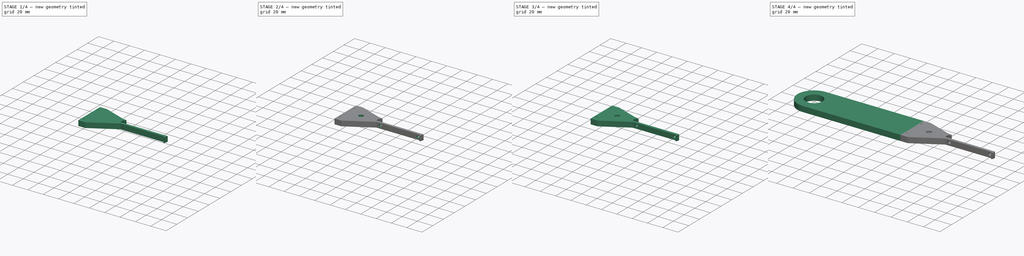
[diagram: build sequence overview — one tinted view per stage of 4, left to right]
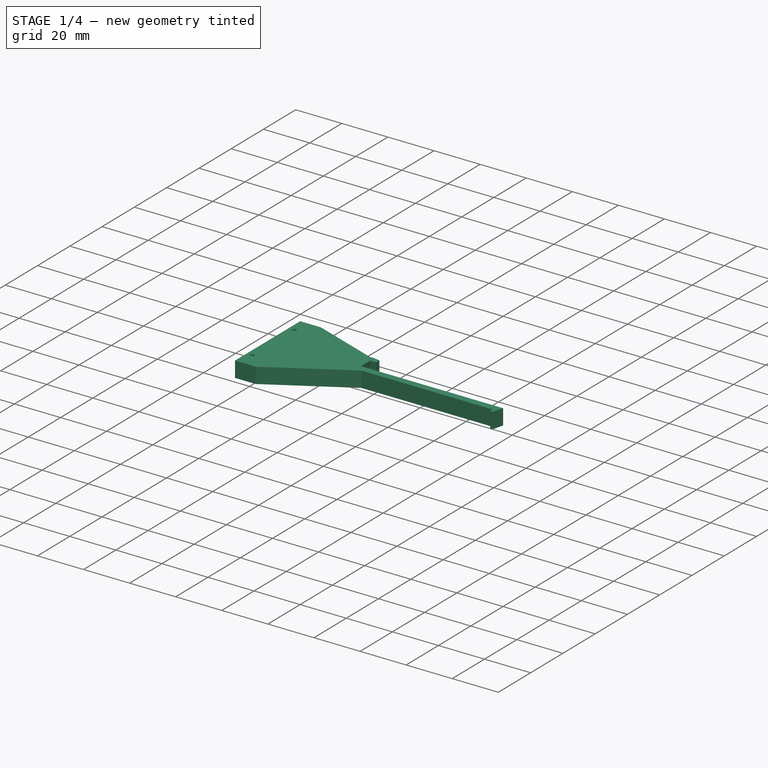
[diagram: stage 1 of 4 — iso view after this stage's code; geometry added in this stage tinted green]
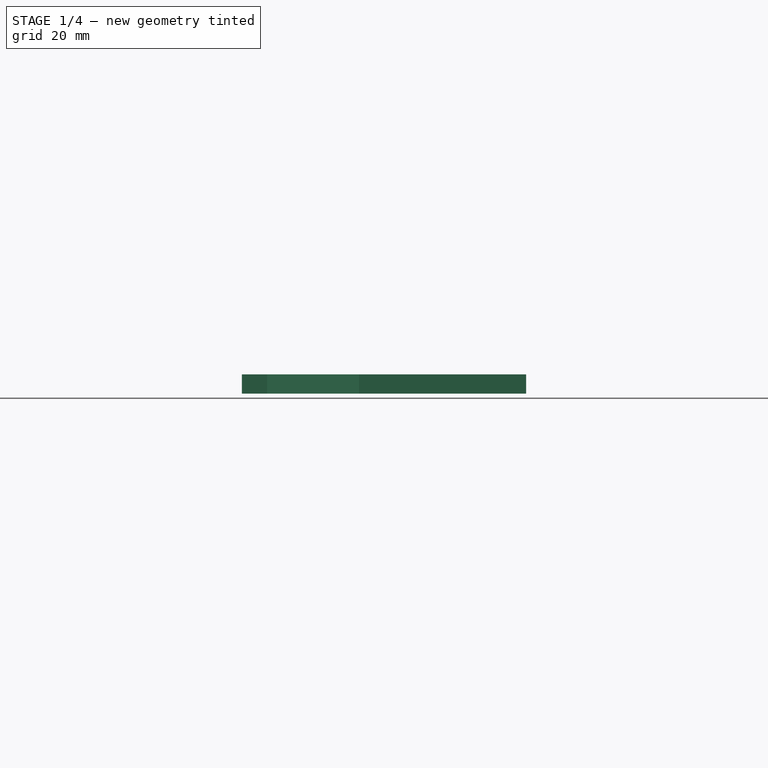
[diagram: stage 1 of 4 — front view after this stage's code; geometry added in this stage tinted green]
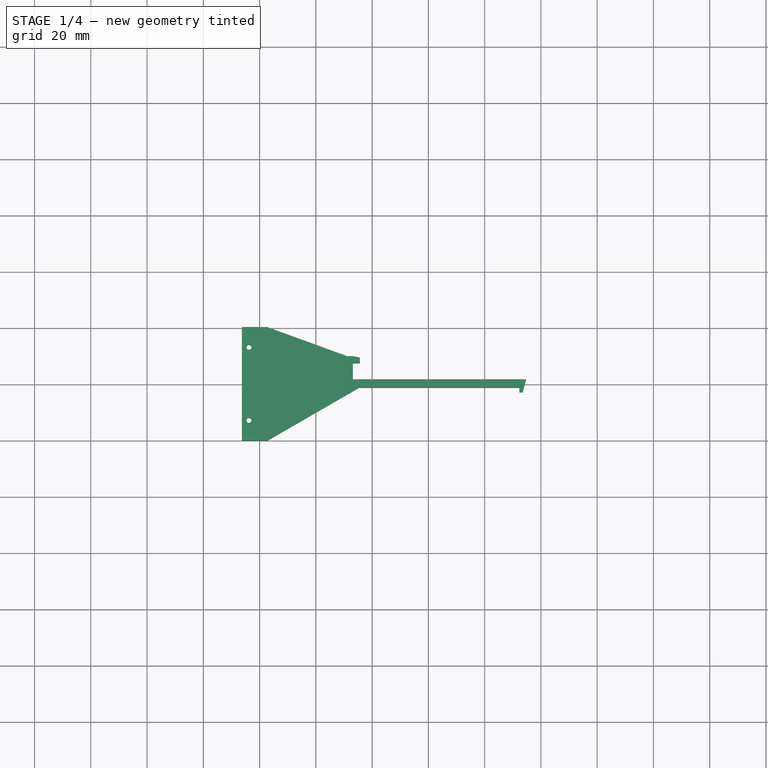
[diagram: stage 1 of 4 — top view after this stage's code; geometry added in this stage tinted green]
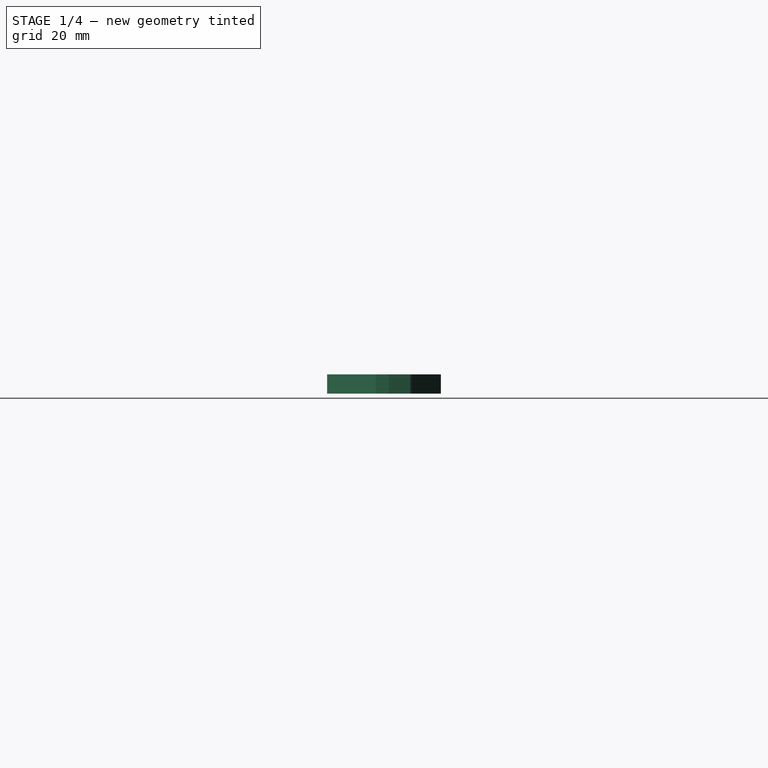
[diagram: stage 1 of 4 — right view after this stage's code; geometry added in this stage tinted green]
FCSTD DOCUMENT  (FreeCAD 0.18R16155 (Git))
Label: pro_w_spool_holder
License: All rights reserved
LicenseURL: http://en.wikipedia.org/wiki/All_rights_reserved
objects: Sketcher::SketchObject×9, PartDesign::Pad×4, PartDesign::Hole×4, PartDesign::Fillet×3, PartDesign::Body×2, App::Part×2, App::FeaturePython×2, PartDesign::Pocket×1
note: 32 computed .brp shape members not serialized (recipe doc carries the construction recipe); baked Part::Feature solids carry a one-line shape summary decoded from their .brp

FEATURE [Sketcher::SketchObject] Sketch002
  MapMode = 5
  Support = -> [XY_Plane003]
  sketch-geometry (21):
    g0: LineSegment [constr] StartX=71.1384 StartY=21.8472 StartZ=0 EndX=71.1384 EndY=30.0472 EndZ=0
    g1: LineSegment StartX=71.1384 StartY=30.0472 StartZ=0 EndX=73.1384 EndY=30.0472 EndZ=0
    g2: LineSegment StartX=73.1384 StartY=30.0472 StartZ=0 EndX=75.6384 EndY=29.5472 EndZ=0
    g3: LineSegment StartX=75.6384 StartY=29.5472 StartZ=0 EndX=75.6384 EndY=27.5472 EndZ=0
    g4: LineSegment StartX=75.6384 StartY=27.5472 StartZ=0 EndX=73.1384 EndY=27.5472 EndZ=0
    g5: LineSegment StartX=73.1384 StartY=27.5472 StartZ=0 EndX=73.1384 EndY=21.8472 EndZ=0
    g6: LineSegment StartX=132.338 StartY=21.8472 StartZ=0 EndX=134.738 EndY=21.8472 EndZ=0
    g7: LineSegment StartX=134.738 StartY=21.8472 StartZ=0 EndX=133.538 EndY=17.2472 EndZ=0
    g8: LineSegment StartX=133.538 StartY=17.2472 StartZ=0 EndX=132.338 EndY=17.2472 EndZ=0
    g9: LineSegment StartX=132.338 StartY=17.2472 StartZ=0 EndX=132.338 EndY=18.8472 EndZ=0
    g10: LineSegment StartX=132.338 StartY=18.8472 StartZ=0 EndX=75.3384 EndY=18.8472 EndZ=0
    g11: LineSegment StartX=33.6942 StartY=40.4 StartZ=0 EndX=33.6942 EndY=0 EndZ=0
    g12: LineSegment [constr] StartX=132.338 StartY=21.8472 StartZ=0 EndX=132.338 EndY=18.8472 EndZ=0
    g13: LineSegment [constr] StartX=73.1384 StartY=30.0472 StartZ=0 EndX=73.1384 EndY=27.5472 EndZ=0
    g14: LineSegment [constr] StartX=71.1384 StartY=21.8472 StartZ=0 EndX=73.1384 EndY=21.8472 EndZ=0
    g15: LineSegment StartX=33.6942 StartY=40.4 StartZ=0 EndX=42.6942 EndY=40.4 EndZ=0
    g16: LineSegment StartX=33.6942 StartY=0 StartZ=0 EndX=42.6942 EndY=0 EndZ=0
    g17: LineSegment StartX=42.6942 StartY=0 StartZ=0 EndX=75.3384 EndY=18.8472 EndZ=0
    g18: LineSegment StartX=42.6942 StartY=40.4 StartZ=0 EndX=71.1384 EndY=30.0472 EndZ=0
    g19: LineSegment StartX=75.3384 StartY=21.8472 StartZ=0 EndX=132.338 EndY=21.8472 EndZ=0
    g20: LineSegment StartX=73.1384 StartY=21.8472 StartZ=0 EndX=75.3384 EndY=21.8472 EndZ=0
  constraints (59):
    c: Coincident(g5,g4)
    c: Coincident(g4,g3)
    c: Coincident(g3,g2)
    c: Coincident(g2,g1)
    c: Coincident(g1,g0)
    c: Coincident(g10,g9)
    c: Coincident(g6,g7)
    c: Coincident(g8,g9)
    c: Coincident(g8,g7)
    c: Horizontal(g10)
    c: Parallel(g4,g1)
    c: Parallel(g5,g0)
    c: Perpendicular(g10,g9)
    c: Parallel(g3,g5)
    c: Distance(g3) = 2
    c: Coincident(g13,g1)
    c: Coincident(g13,g4)
    c: Coincident(g14,g5)
    c: Coincident(g14,g0)
    c: Coincident(g12,g9)
    c: Distance(g12) = 3
    c: Parallel(g12,g9)
    c: Distance(g10) = 57
    c: Distance(g9) = 1.6
    c: Parallel(g8,g6)
    c: Parallel(g5,g13)
    c: Distance(g13) = 2.5
    c: Distance(g4) = 2.5
    c: Distance(g14) = 2
    c: Parallel(g11,g12)
    c: Distance(g11) = 40.4
    c: Distance(g8) = 1.2
    c: Distance(g6) = 2.4
    c: Coincident(g18,g1)
    c: Coincident(g18,g15)
    c: Coincident(g15,g11)
    c: Coincident(g11,g16)
    c: Coincident(g16,g17)
    c: Coincident(g17,g10)
    c: Parallel(g10,g15)
    c: Parallel(g16,g15)
    c: Equal(g15,g16)
    c: Distance(g15) = 9
    c: Angle(g17,g10) = 2.61799
    c: Distance(g5) = 5.7
    c: Angle(g1,g18) = 2.79253
    c: PointOnObject(g11,g-1)
    c: Coincident(g19,g20)
    c: Coincident(g20,g5)
    c: Coincident(g19,g6)
    c: Equal(g10,g19)
    c: Parallel(g19,g10)
    c: Parallel(g20,g19)
    c: Coincident(g12,g6)
    c: Parallel(g19,g6)
    c: Distance(g20) = 2.2
    c: Perpendicular(g5,g20)
    c: Parallel(g20,g14)
    c: Parallel(g4,g19)
FEATURE [PartDesign::Pad] Pad002
  Length = 6.8
  Length2 = 100
  Profile = -> Sketch002
  Type = 0
FEATURE [PartDesign::Body] Body
  Group = -> [Sketch,Pad,Sketch001,Pad001,Sketch004,Hole]
  Origin = -> Origin001
  Tip = -> Hole
FEATURE [App::Part] Part
  Group = -> [Body]
  Origin = -> Origin
FEATURE [Sketcher::SketchObject] Sketch005
  ExternalGeometry = -> [Pad002]
  MapMode = 5
  Placement = pos=(33.6942,-5.93e-14,0) rot=(-0.57735,0.57735,0.57735;4.18879rad)
  Support = -> [Pad002]
  sketch-geometry (7):
    g0: LineSegment StartX=-35.8 StartY=1.8 StartZ=0 EndX=-4.6 EndY=1.8 EndZ=0
    g1: LineSegment StartX=-4.6 StartY=1.8 StartZ=0 EndX=-4.6 EndY=5 EndZ=0
    g2: LineSegment StartX=-4.6 StartY=5 StartZ=0 EndX=-35.8 EndY=5 EndZ=0
    g3: LineSegment StartX=-35.8 StartY=5 StartZ=0 EndX=-35.8 EndY=1.8 EndZ=0
    g4: LineSegment [constr] StartX=-40.4 StartY=6.8 StartZ=0 EndX=-35.8 EndY=5 EndZ=0
    g5: LineSegment [constr] StartX=-40.4 StartY=0 StartZ=0 EndX=-35.8 EndY=1.8 EndZ=0
    g6: LineSegment [constr] StartX=-4.6 StartY=5 StartZ=0 EndX=-5.95e-14 EndY=6.8 EndZ=0
  constraints (18):
    c: Coincident(g0,g1)
    c: Coincident(g1,g2)
    c: Coincident(g2,g3)
    c: Coincident(g3,g0)
    c: Horizontal(g0)
    c: Horizontal(g2)
    c: Vertical(g1)
    c: Vertical(g3)
    c: Coincident(g4,g2)
    c: Coincident(g5,g0)
    c: Coincident(g6,g1)
    c: Coincident(g6,g-4)
    c: Coincident(g4,g-3)
    c: Coincident(g5,g-3)
    c: Equal(g6,g4)
    c: Equal(g4,g5)
    c: Distance(g2) = 31.2
    c: Distance(g1) = 3.2
FEATURE [PartDesign::Pocket] Pocket
  BaseFeature = -> Pad002
  Length = 5.5
  Length2 = 100
  Profile = -> Sketch005
  Type = 0
FEATURE [Sketcher::SketchObject] Sketch006
  ExternalGeometry = -> [Pocket]
  MapMode = 5
  Placement = pos=(0,0,6.8) rot=(0,0,1;0rad)
  Support = -> [Pocket]
  sketch-geometry (11):
    g0: LineSegment [constr] StartX=33.6942 StartY=40.4 StartZ=0 EndX=33.6942 EndY=35.7 EndZ=0
    g1: LineSegment [constr] StartX=33.6942 StartY=35.7 StartZ=0 EndX=33.6942 EndY=4.7 EndZ=0
    g2: LineSegment [constr] StartX=36.1942 StartY=7.2 StartZ=0 EndX=38.6942 EndY=4.7 EndZ=0
    g3: LineSegment [constr] StartX=33.6942 StartY=0 StartZ=0 EndX=33.6942 EndY=4.7 EndZ=0
    g4: LineSegment [constr] StartX=33.6942 StartY=35.7 StartZ=0 EndX=36.1942 EndY=33.2 EndZ=0
    g5: LineSegment [constr] StartX=33.6942 StartY=35.7 StartZ=0 EndX=38.6942 EndY=35.7 EndZ=0
    g6: LineSegment [constr] StartX=38.6942 StartY=35.7 StartZ=0 EndX=36.1942 EndY=33.2 EndZ=0
    g7: LineSegment [constr] StartX=38.6942 StartY=4.7 StartZ=0 EndX=33.6942 EndY=4.7 EndZ=0
    g8: LineSegment [constr] StartX=36.1942 StartY=7.2 StartZ=0 EndX=33.6942 EndY=4.7 EndZ=0
    g9: Circle CenterX=36.1942 CenterY=33.2 CenterZ=0 NormalX=0 NormalY=0 NormalZ=1 AngleXU=0 Radius=0.9
    g10: Circle CenterX=36.1942 CenterY=7.2 CenterZ=0 NormalX=0 NormalY=0 NormalZ=1 AngleXU=0 Radius=0.9
  constraints (28):
    c: Coincident(g0,g1)
    c: Coincident(g0,g-3)
    c: Coincident(g1,g3)
    c: Coincident(g3,g-3)
    c: Equal(g0,g3)
    c: Distance(g1) = 31
    c: Parallel(g0,g1)
    c: Parallel(g1,g3)
    c: Perpendicular(g1,g7)
    c: Parallel(g7,g5)
    c: Equal(g5,g7)
    c: Distance(g5) = 5
    c: Coincident(g5,g0)
    c: Coincident(g7,g1)
    c: Coincident(g1,g8)
    c: Coincident(g8,g2)
    c: Coincident(g2,g7)
    c: Coincident(g6,g5)
    c: Coincident(g4,g0)
    c: Coincident(g6,g4)
    c: Equal(g6,g4)
    c: Equal(g2,g8)
    c: Diameter(g10) = 1.8
    c: Equal(g9,g10)
    c: Coincident(g9,g4)
    c: Coincident(g10,g2)
    c: Perpendicular(g4,g6)
    c: Perpendicular(g8,g2)
FEATURE [App::FeaturePython] planeConstraint01  # a2plus constraint (typed FeaturePython)
  Object1 = Pocket
  Object2 = Hole
  SubElement1 = Face2
  SubElement2 = Face6
  Type = plane
  directionConstraint = 0
  offset = 0
FEATURE [App::FeaturePython] planeConstraint02  # a2plus constraint (typed FeaturePython)
  Object1 = Pocket
  Object2 = Hole
  SubElement1 = Face1
  SubElement2 = Face2
  Type = plane
  directionConstraint = 0
  offset = 0
FEATURE [PartDesign::Hole] Hole001
  BaseFeature = -> Pocket
  Depth = 25
  DepthType = 0
  Diameter = 1.75
  DrillPoint = 1
  DrillPointAngle = 118
  HoleCutCountersinkAngle = 90
  HoleCutDepth = 0
  HoleCutDiameter = 2
  HoleCutType = 0
  ModelActualThread = false
  Profile = -> Sketch006
  Tapered = false
  TaperedAngle = 90
  ThreadAngle = 60
  ThreadClass = 0
  ThreadCutOffInner = 0.0270633
  ThreadCutOffOuter = 0.0541266
  ThreadDirection = 1
  ThreadFit = 0
  ThreadPitch = 0.25
  ThreadSize = 6
  ThreadType = 2
  Threaded = true
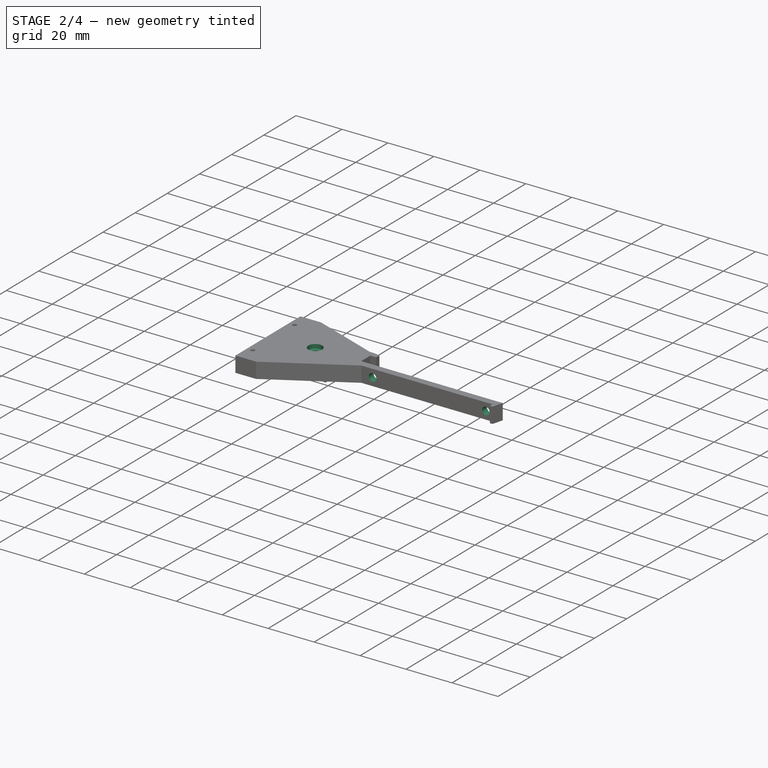
[diagram: stage 2 of 4 — iso view after this stage's code; geometry added in this stage tinted green]
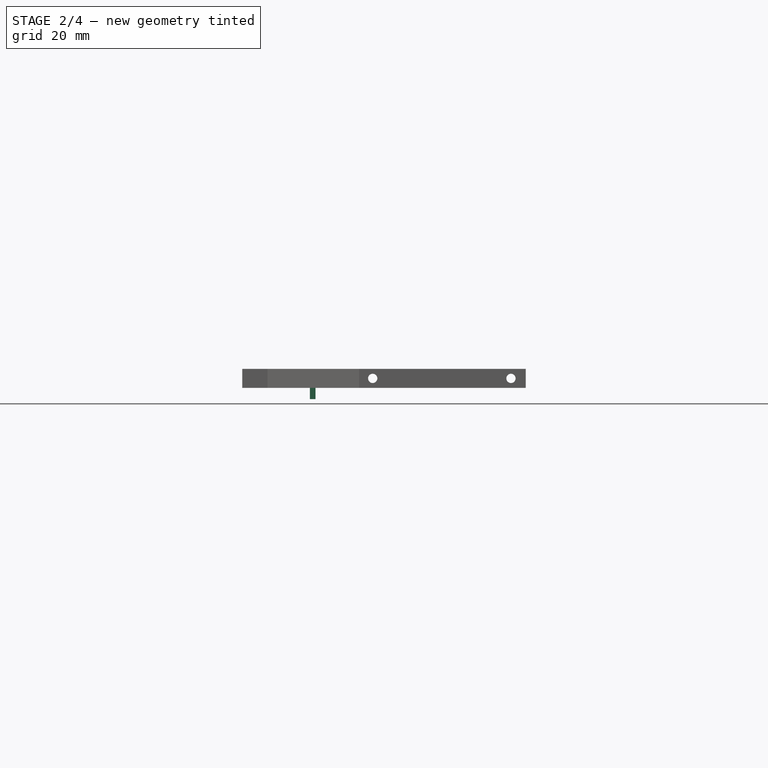
[diagram: stage 2 of 4 — front view after this stage's code; geometry added in this stage tinted green]
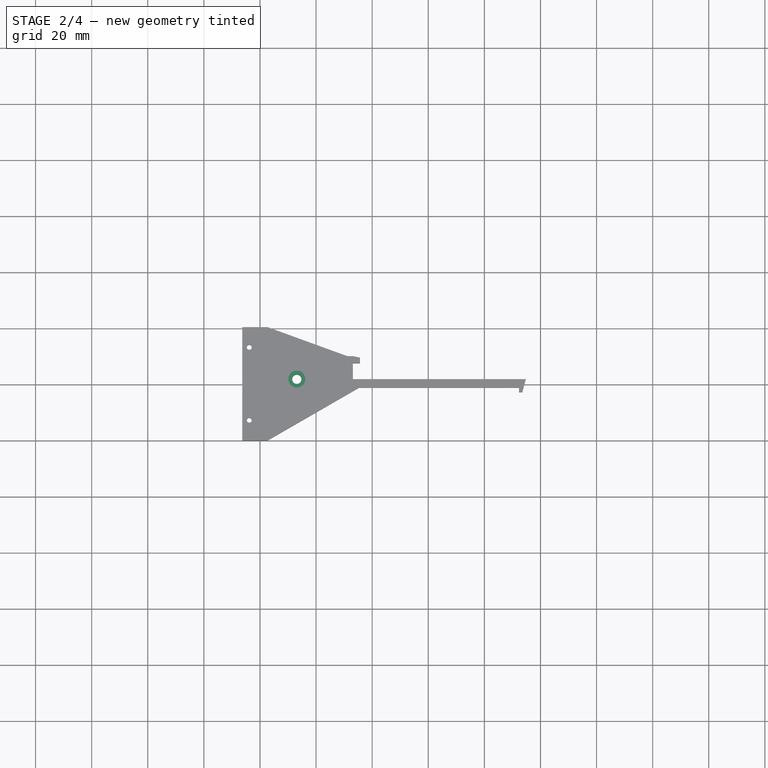
[diagram: stage 2 of 4 — top view after this stage's code; geometry added in this stage tinted green]
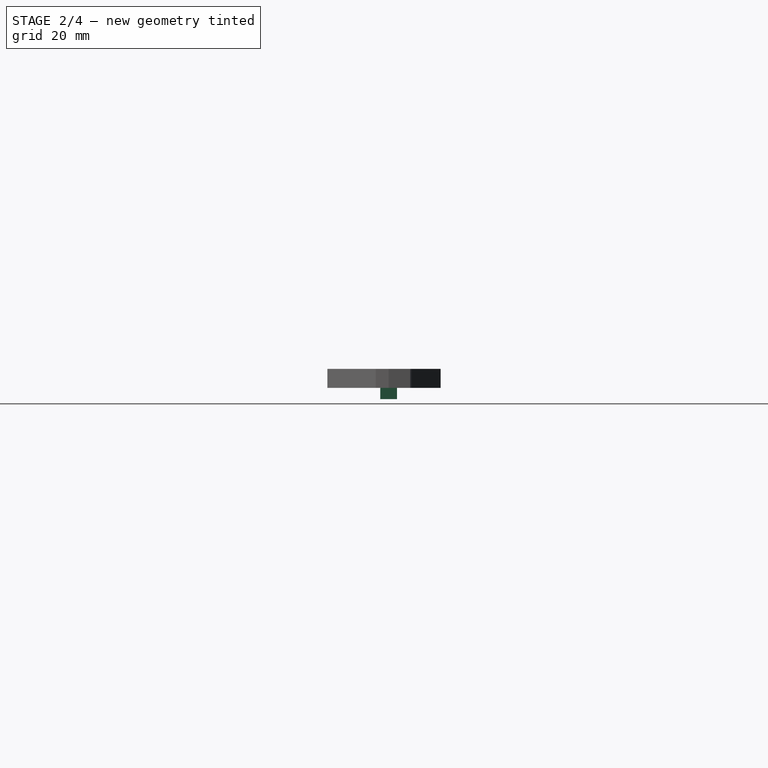
[diagram: stage 2 of 4 — right view after this stage's code; geometry added in this stage tinted green]
FEATURE [Sketcher::SketchObject] Sketch007
  ExternalGeometry = -> [Hole001]
  MapMode = 5
  Placement = pos=(0,18.8472,0) rot=(1,0,0;1.5708rad)
  Support = -> [Hole001]
  sketch-geometry (10):
    g0: Circle CenterX=129.488 CenterY=3.4 CenterZ=0 NormalX=0 NormalY=0 NormalZ=1 AngleXU=0 Radius=1.65
    g1: Circle CenterX=80.1884 CenterY=3.4 CenterZ=0 NormalX=0 NormalY=0 NormalZ=1 AngleXU=0 Radius=1.65
    g2: LineSegment [constr] StartX=129.488 StartY=6.8 StartZ=0 EndX=129.488 EndY=3.4 EndZ=0
    g3: LineSegment [constr] StartX=129.488 StartY=3.4 StartZ=0 EndX=132.338 EndY=3.4 EndZ=0
    g4: LineSegment [constr] StartX=129.488 StartY=3.4 StartZ=0 EndX=129.488 EndY=0 EndZ=0
    g5: LineSegment [constr] StartX=132.338 StartY=0 StartZ=0 EndX=77.3384 EndY=0 EndZ=0
    g6: LineSegment [constr] StartX=77.3384 StartY=0 StartZ=0 EndX=77.3384 EndY=6.8 EndZ=0
    g7: LineSegment [constr] StartX=80.1884 StartY=6.8 StartZ=0 EndX=80.1884 EndY=3.4 EndZ=0
    g8: LineSegment [constr] StartX=80.1884 StartY=3.4 StartZ=0 EndX=80.1884 EndY=0 EndZ=0
    g9: LineSegment [constr] StartX=77.3384 StartY=3.4 StartZ=0 EndX=80.1884 EndY=3.4 EndZ=0
  constraints (30):
    c: Equal(g0,g1)
    c: Diameter(g0) = 3.3
    c: Distance(g3) = 2.85
    c: PointOnObject(g3,g-5)
    c: Coincident(g3,g0)
    c: Coincident(g0,g2)
    c: Coincident(g4,g0)
    c: Parallel(g2,g4)
    c: Perpendicular(g2,g3)
    c: PointOnObject(g4,g-4)
    c: PointOnObject(g2,g-3)
    c: Equal(g4,g2)
    c: Vertical(g2)
    c: Coincident(g5,g-5)
    c: Distance(g5) = 55
    c: Coincident(g6,g5)
    c: Perpendicular(g6,g5)
    c: PointOnObject(g6,g-3)
    c: PointOnObject(g5,g-4)
    c: Coincident(g9,g7)
    c: Coincident(g7,g8)
    c: Coincident(g7,g1)
    c: Equal(g9,g3)
    c: Equal(g8,g7)
    c: Parallel(g8,g7)
    c: Perpendicular(g9,g8)
    c: PointOnObject(g9,g6)
    c: PointOnObject(g7,g-3)
    c: PointOnObject(g8,g5)
    c: Perpendicular(g5,g8)
FEATURE [PartDesign::Hole] Hole002
  BaseFeature = -> Hole001
  Depth = 25
  DepthType = 1
  Diameter = 3.3
  DrillPoint = 1
  DrillPointAngle = 118
  HoleCutCountersinkAngle = 90
  HoleCutDepth = 0
  HoleCutDiameter = 3
  HoleCutType = 0
  ModelActualThread = false
  Profile = -> Sketch007
  Tapered = false
  TaperedAngle = 90
  ThreadAngle = 0
  ThreadClass = 0
  ThreadCutOffInner = 0
  ThreadCutOffOuter = 0
  ThreadDirection = 0
  ThreadFit = 0
  ThreadPitch = 0
  ThreadSize = 9
  ThreadType = 2
  Threaded = false
FEATURE [Sketcher::SketchObject] Sketch009
  ExternalGeometry = -> [Hole002]
  MapMode = 5
  Placement = pos=(0,0,6.8) rot=(0,0,1;0rad)
  Support = -> [Hole002]
  sketch-geometry (2):
    g0: LineSegment [constr] StartX=73.1384 StartY=21.8472 StartZ=0 EndX=53.1384 EndY=21.8472 EndZ=0
    g1: Circle CenterX=53.1384 CenterY=21.8472 CenterZ=0 NormalX=0 NormalY=0 NormalZ=1 AngleXU=0 Radius=1.65
  constraints (5):
    c: Coincident(g0,g-3)
    c: Coincident(g0,g1)
    c: Perpendicular(g-3,g0)
    c: Distance(g0) = 20
    c: Diameter(g1) = 3.3
FEATURE [PartDesign::Hole] Hole003
  BaseFeature = -> Hole002
  Depth = 25
  DepthType = 1
  Diameter = 3.3
  DrillPoint = 1
  DrillPointAngle = 118
  HoleCutCountersinkAngle = 90
  HoleCutDepth = 1.8
  HoleCutDiameter = 6
  HoleCutType = 1
  ModelActualThread = false
  Profile = -> Sketch009
  Tapered = false
  TaperedAngle = 90
  ThreadAngle = 0
  ThreadClass = 0
  ThreadCutOffInner = 0
  ThreadCutOffOuter = 0
  ThreadDirection = 0
  ThreadFit = 0
  ThreadPitch = 0
  ThreadSize = 9
  ThreadType = 2
  Threaded = false
FEATURE [Sketcher::SketchObject] Sketch010
  ExternalGeometry = -> [Hole003]
  MapMode = 5
  Placement = pos=(0,0,0) rot=(1,0,0;3.14159rad)
  Support = -> [Hole003]
  sketch-geometry (8):
    g0: LineSegment [constr] StartX=53.1384 StartY=-21.8472 StartZ=0 EndX=73.1384 EndY=-21.8472 EndZ=0
    g1: LineSegment StartX=57.7884 StartY=-18.8472 StartZ=0 EndX=59.7884 EndY=-18.8472 EndZ=0
    g2: LineSegment StartX=59.7884 StartY=-18.8472 StartZ=0 EndX=59.7884 EndY=-24.8472 EndZ=0
    g3: LineSegment StartX=59.7884 StartY=-24.8472 StartZ=0 EndX=57.7884 EndY=-24.8472 EndZ=0
    g4: LineSegment StartX=57.7884 StartY=-24.8472 StartZ=0 EndX=57.7884 EndY=-18.8472 EndZ=0
    g5: LineSegment [constr] StartX=54.7884 StartY=-21.8472 StartZ=0 EndX=57.7884 EndY=-18.8472 EndZ=0
    g6: LineSegment [constr] StartX=54.7884 StartY=-21.8472 StartZ=0 EndX=57.7884 EndY=-24.8472 EndZ=0
    g7: LineSegment [constr] StartX=54.7884 StartY=-21.8472 StartZ=0 EndX=57.7884 EndY=-21.8472 EndZ=0
  constraints (22):
    c: Coincident(g0,g-4)
    c: Coincident(g0,g-3)
    c: Coincident(g1,g2)
    c: Coincident(g2,g3)
    c: Coincident(g3,g4)
    c: Coincident(g4,g1)
    c: Horizontal(g1)
    c: Horizontal(g3)
    c: Vertical(g2)
    c: Vertical(g4)
    c: PointOnObject(g7,g4)
    c: Coincident(g5,g1)
    c: Coincident(g5,g7)
    c: Coincident(g5,g6)
    c: Coincident(g6,g3)
    c: Equal(g6,g5)
    c: Distance(g7) = 3
    c: Perpendicular(g5,g6)
    c: Perpendicular(g4,g7)
    c: PointOnObject(g5,g-3)
    c: PointOnObject(g5,g0)
    c: Distance(g1) = 2
FEATURE [PartDesign::Pad] Pad003
  BaseFeature = -> Hole003
  Length = 4
  Length2 = 100
  Profile = -> Sketch010
  Type = 0
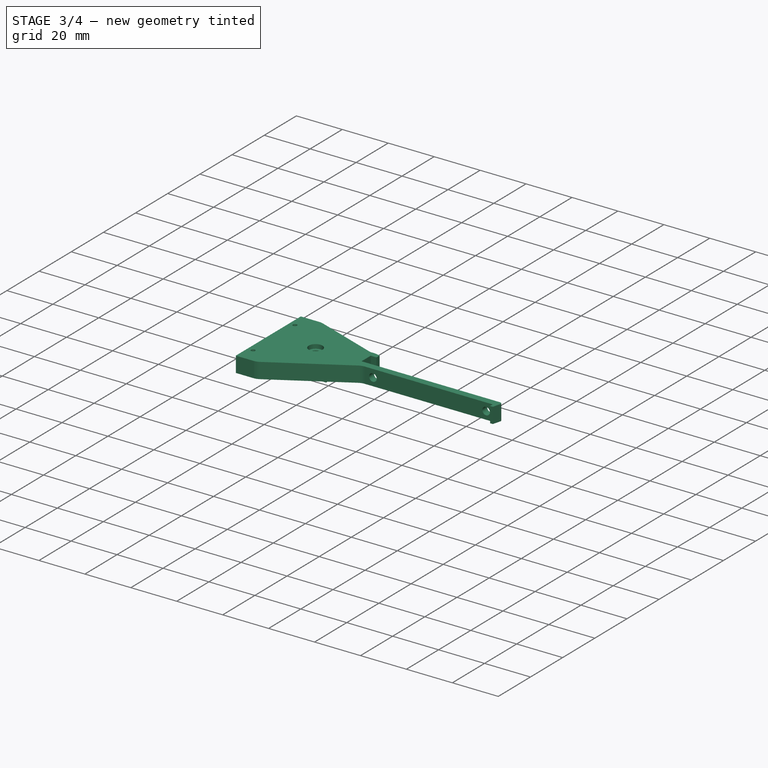
[diagram: stage 3 of 4 — iso view after this stage's code; geometry added in this stage tinted green]
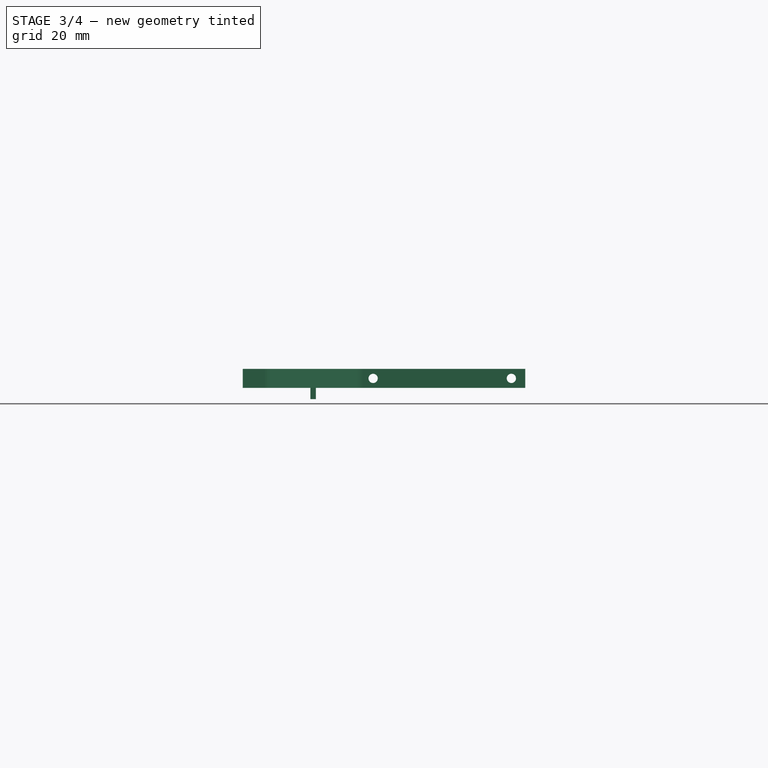
[diagram: stage 3 of 4 — front view after this stage's code; geometry added in this stage tinted green]
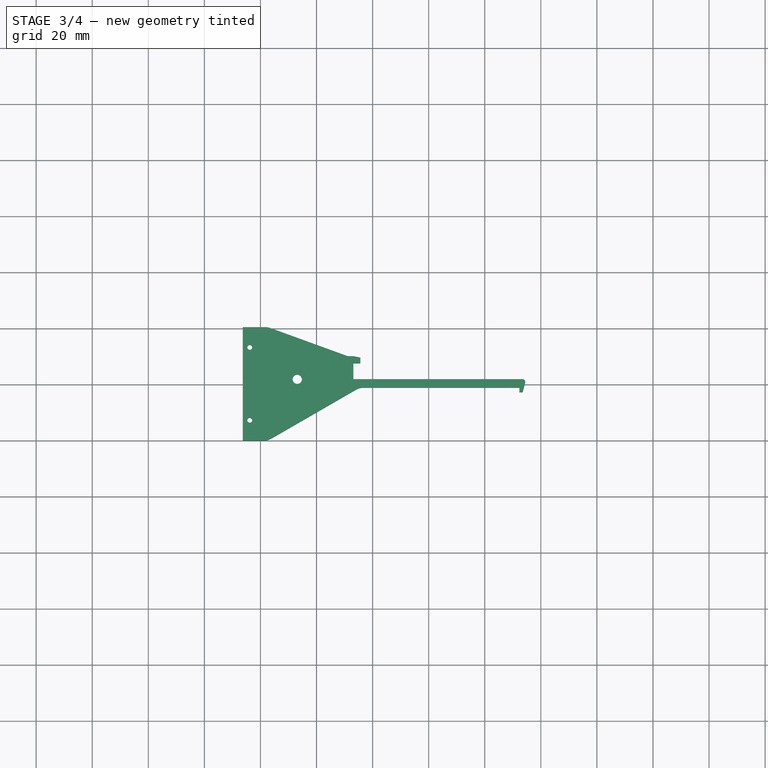
[diagram: stage 3 of 4 — top view after this stage's code; geometry added in this stage tinted green]
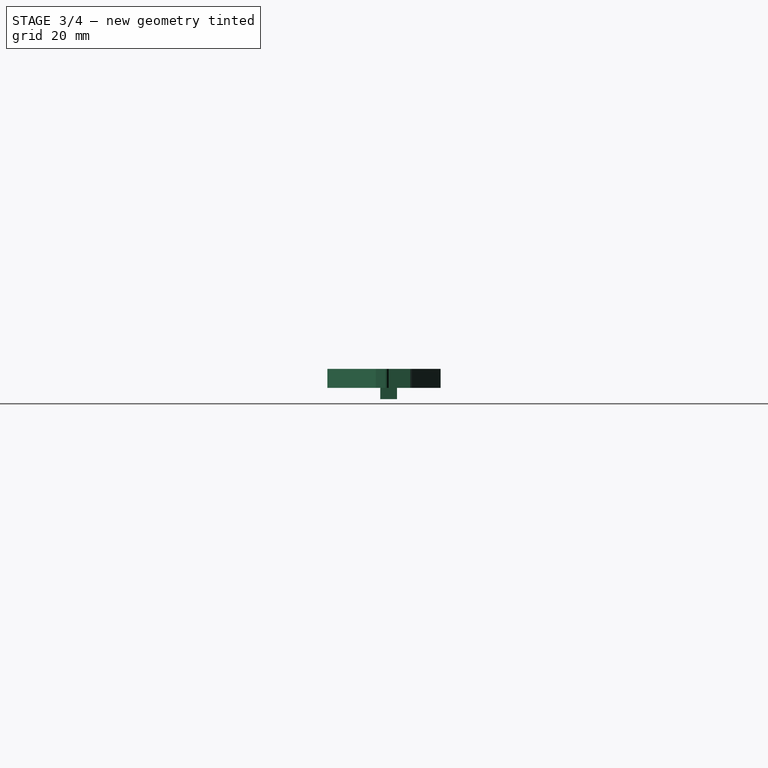
[diagram: stage 3 of 4 — right view after this stage's code; geometry added in this stage tinted green]
FEATURE [PartDesign::Fillet] Fillet
  Base = -> Pad003 [Edge77]
  BaseFeature = -> Pad003
  Radius = 1
FEATURE [PartDesign::Fillet] Fillet001
  Base = -> Fillet [Edge67]
  BaseFeature = -> Fillet
  Radius = 3
FEATURE [PartDesign::Fillet] Fillet002
  Base = -> Fillet001 [Edge28,Edge48,Edge44]
  BaseFeature = -> Fillet001
  Radius = 5
FEATURE [PartDesign::Body] Body001
  Group = -> [Sketch002,Pad002,Sketch005,Pocket,Sketch006,Hole001,Sketch007,Hole002,Sketch009,Hole003,Sketch010,Pad003,Fillet,Fillet001,Fillet002]
  Origin = -> Origin003
  Tip = -> Fillet002
FEATURE [App::Part] Part001
  Group = -> [Body001]
  Origin = -> Origin002
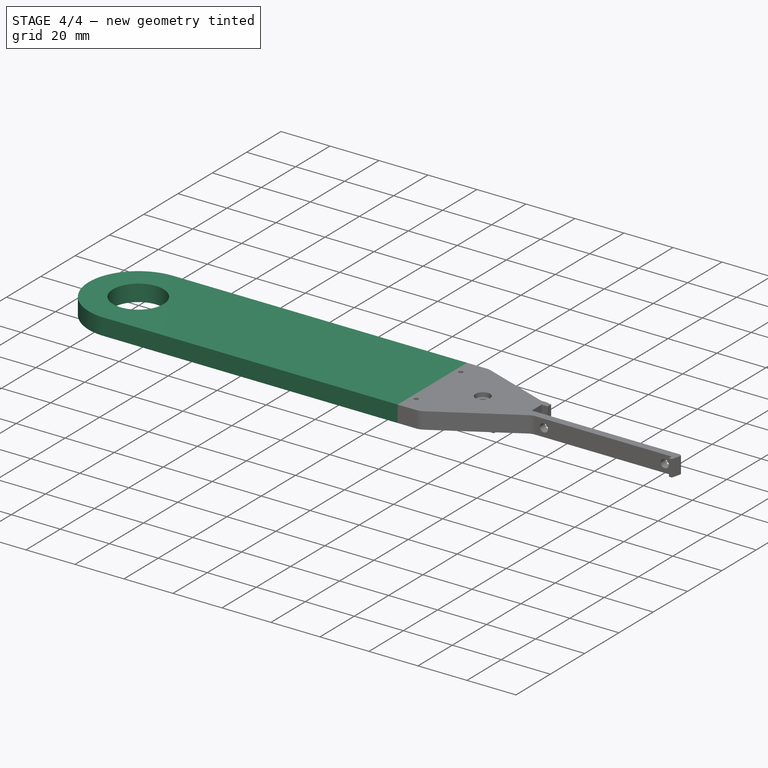
[diagram: stage 4 of 4 — iso view after this stage's code; geometry added in this stage tinted green]
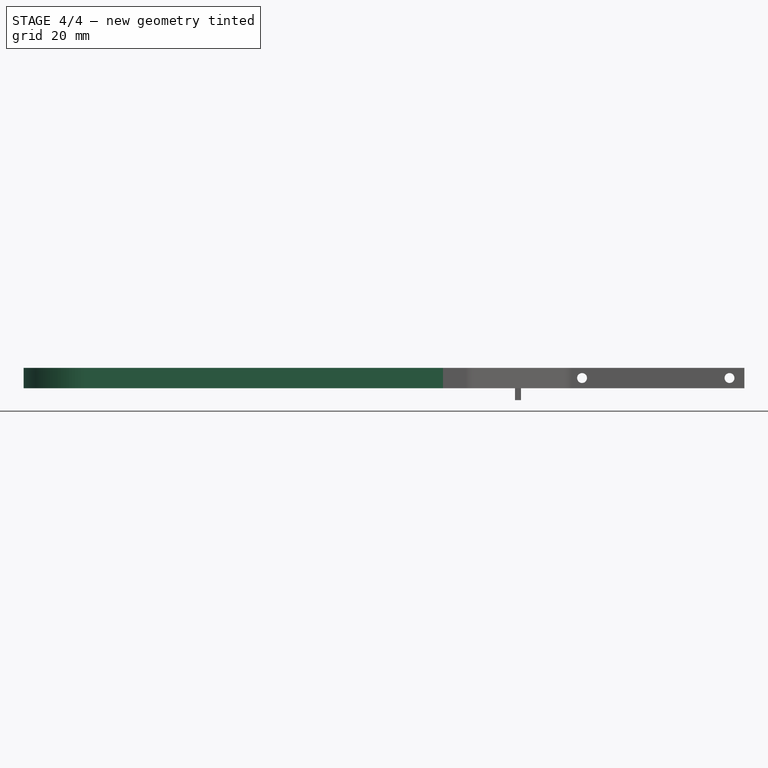
[diagram: stage 4 of 4 — front view after this stage's code; geometry added in this stage tinted green]
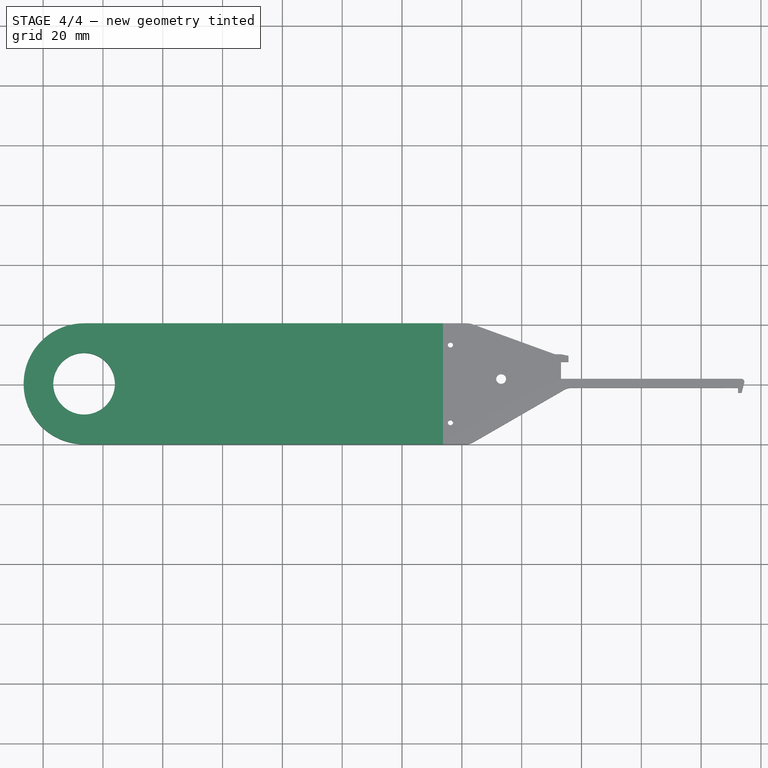
[diagram: stage 4 of 4 — top view after this stage's code; geometry added in this stage tinted green]
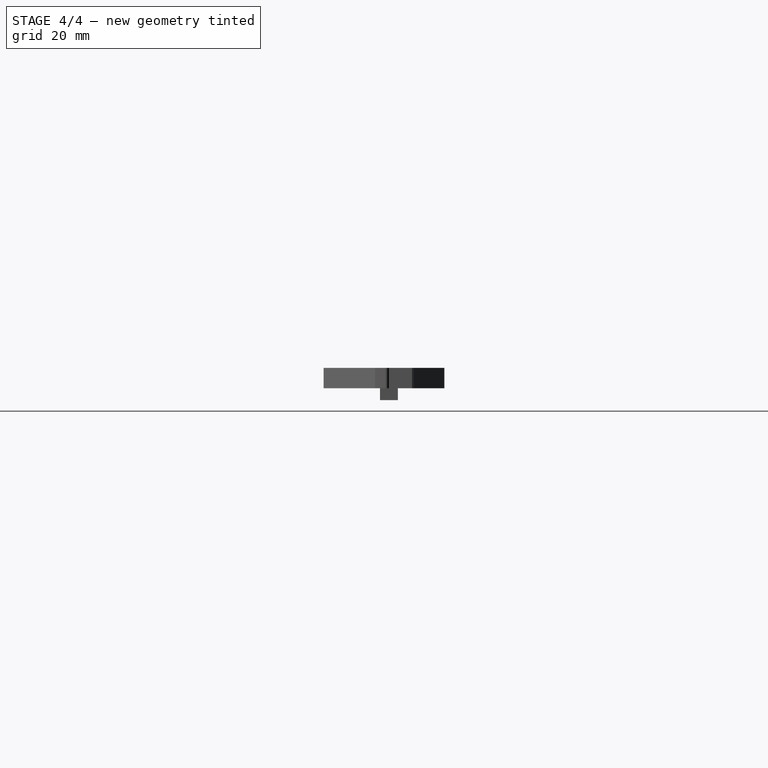
[diagram: stage 4 of 4 — right view after this stage's code; geometry added in this stage tinted green]
FEATURE [Sketcher::SketchObject] Sketch
  MapMode = 5
  Support = -> [XY_Plane001]
  sketch-geometry (7):
    g0: Circle CenterX=-120 CenterY=20.2 CenterZ=0 NormalX=0 NormalY=0 NormalZ=1 AngleXU=0 Radius=10.3
    g1: ArcOfCircle CenterX=-120 CenterY=20.2 CenterZ=0 NormalX=0 NormalY=0 NormalZ=1 AngleXU=0 Radius=20.2 StartAngle=1.5708 EndAngle=4.71239
    g2: LineSegment [constr] StartX=-120 StartY=20.2 StartZ=0 EndX=-120 EndY=0 EndZ=0
    g3: LineSegment StartX=-120 StartY=40.4 StartZ=0 EndX=0 EndY=40.4 EndZ=0
    g4: LineSegment StartX=-120 StartY=0 StartZ=0 EndX=0 EndY=0 EndZ=0
    g5: LineSegment StartX=0 StartY=40.4 StartZ=0 EndX=0 EndY=0 EndZ=0
    g6: LineSegment [constr] StartX=-120 StartY=40.4 StartZ=0 EndX=-120 EndY=20.2 EndZ=0
  constraints (19):
    c: Diameter(g0) = 20.6
    c: Coincident(g1,g0)
    c: Vertical(g2)
    c: Coincident(g2,g1)
    c: Coincident(g2,g0)
    c: Coincident(g3,g1)
    c: Coincident(g4,g1)
    c: Parallel(g4,g3)
    c: Distance(g4) = 120
    c: Equal(g3,g4)
    c: Perpendicular(g2,g4)
    c: Coincident(g5,g3)
    c: Coincident(g5,g4)
    c: Coincident(g4,g-1)
    c: Distance(g5) = 40.4
    c: Coincident(g6,g0)
    c: Coincident(g6,g1)
    c: Equal(g6,g2)
    c: Parallel(g6,g2)
FEATURE [PartDesign::Pad] Pad
  Length = 6.8
  Length2 = 100
  Profile = -> Sketch
  Type = 0
FEATURE [Sketcher::SketchObject] Sketch001
  ExternalGeometry = -> [Pad]
  MapMode = 5
  Placement = pos=(0,0,0) rot=(0.57735,0.57735,0.57735;2.0944rad)
  Support = -> [Pad]
  sketch-geometry (8):
    g0: LineSegment StartX=4.7 StartY=4.9 StartZ=0 EndX=35.7 EndY=4.9 EndZ=0
    g1: LineSegment StartX=35.7 StartY=4.9 StartZ=0 EndX=35.7 EndY=1.9 EndZ=0
    g2: LineSegment StartX=35.7 StartY=1.9 StartZ=0 EndX=4.7 EndY=1.9 EndZ=0
    g3: LineSegment StartX=4.7 StartY=1.9 StartZ=0 EndX=4.7 EndY=4.9 EndZ=0
    g4: LineSegment [constr] StartX=0 StartY=6.8 StartZ=0 EndX=4.7 EndY=4.9 EndZ=0
    g5: LineSegment [constr] StartX=0 StartY=0 StartZ=0 EndX=4.7 EndY=1.9 EndZ=0
    g6: LineSegment [constr] StartX=40.4 StartY=6.8 StartZ=0 EndX=35.7 EndY=4.9 EndZ=0
    g7: LineSegment [constr] StartX=40.4 StartY=2.2e-15 StartZ=0 EndX=35.7 EndY=1.9 EndZ=0
  constraints (20):
    c: Coincident(g0,g1)
    c: Coincident(g1,g2)
    c: Coincident(g2,g3)
    c: Coincident(g3,g0)
    c: Horizontal(g0)
    c: Horizontal(g2)
    c: Vertical(g1)
    c: Vertical(g3)
    c: Coincident(g4,g0)
    c: Coincident(g5,g2)
    c: Coincident(g7,g1)
    c: Coincident(g6,g0)
    c: Coincident(g6,g-4)
    c: Coincident(g7,g-4)
    c: Coincident(g5,g-1)
    c: Coincident(g4,g-3)
    c: Equal(g6,g7)
    c: Equal(g7,g5)
    c: Distance(g1) = 3
    c: Distance(g0) = 31
FEATURE [PartDesign::Pad] Pad001
  BaseFeature = -> Pad
  Length = 5
  Length2 = 100
  Profile = -> Sketch001
  Type = 0
FEATURE [Sketcher::SketchObject] Sketch004
  ExternalGeometry = -> [Pad001]
  MapMode = 5
  Placement = pos=(0,0,4.9) rot=(0,0,1;0rad)
  Support = -> [Pad001]
  sketch-geometry (6):
    g0: Circle CenterX=2.5 CenterY=33.2 CenterZ=0 NormalX=0 NormalY=0 NormalZ=1 AngleXU=0 Radius=0.9
    g1: Circle CenterX=2.5 CenterY=7.2 CenterZ=0 NormalX=0 NormalY=0 NormalZ=1 AngleXU=0 Radius=0.9
    g2: LineSegment [constr] StartX=0 StartY=35.7 StartZ=0 EndX=2.5 EndY=33.2 EndZ=0
    g3: LineSegment [constr] StartX=5 StartY=35.7 StartZ=0 EndX=2.5 EndY=33.2 EndZ=0
    g4: LineSegment [constr] StartX=0 StartY=4.7 StartZ=0 EndX=2.5 EndY=7.2 EndZ=0
    g5: LineSegment [constr] StartX=2.5 StartY=7.2 StartZ=0 EndX=5 EndY=4.7 EndZ=0
  constraints (14):
    c: Diameter(g0) = 1.8
    c: Equal(g0,g1)
    c: Coincident(g4,g1)
    c: Coincident(g1,g5)
    c: Coincident(g3,g0)
    c: Coincident(g2,g0)
    c: Equal(g3,g2)
    c: Equal(g5,g4)
    c: Coincident(g3,g-3)
    c: Coincident(g2,g-3)
    c: Coincident(g5,g-4)
    c: Coincident(g4,g-4)
    c: Perpendicular(g4,g5)
    c: Perpendicular(g2,g3)
FEATURE [PartDesign::Hole] Hole
  BaseFeature = -> Pad001
  Depth = 25
  DepthType = 1
  Diameter = 1.75
  DrillPoint = 1
  DrillPointAngle = 118
  HoleCutCountersinkAngle = 90
  HoleCutDepth = 0
  HoleCutDiameter = 2
  HoleCutType = 0
  ModelActualThread = false
  Placement = pos=(33.6942,0,0) rot=(0,0,1;0rad)
  Profile = -> Sketch004
  Tapered = false
  TaperedAngle = 90
  ThreadAngle = 60
  ThreadClass = 0
  ThreadCutOffInner = 0.0270633
  ThreadCutOffOuter = 0.0541266
  ThreadDirection = 0
  ThreadFit = 1
  ThreadPitch = 0.25
  ThreadSize = 6
  ThreadType = 2
  Threaded = true
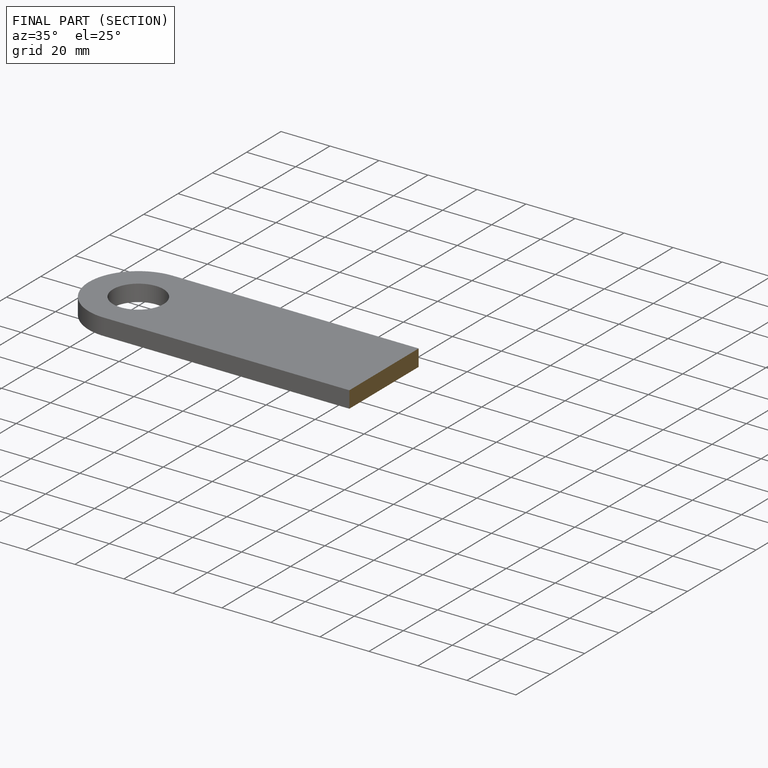
[diagram: finished part — half-section view (interior)]
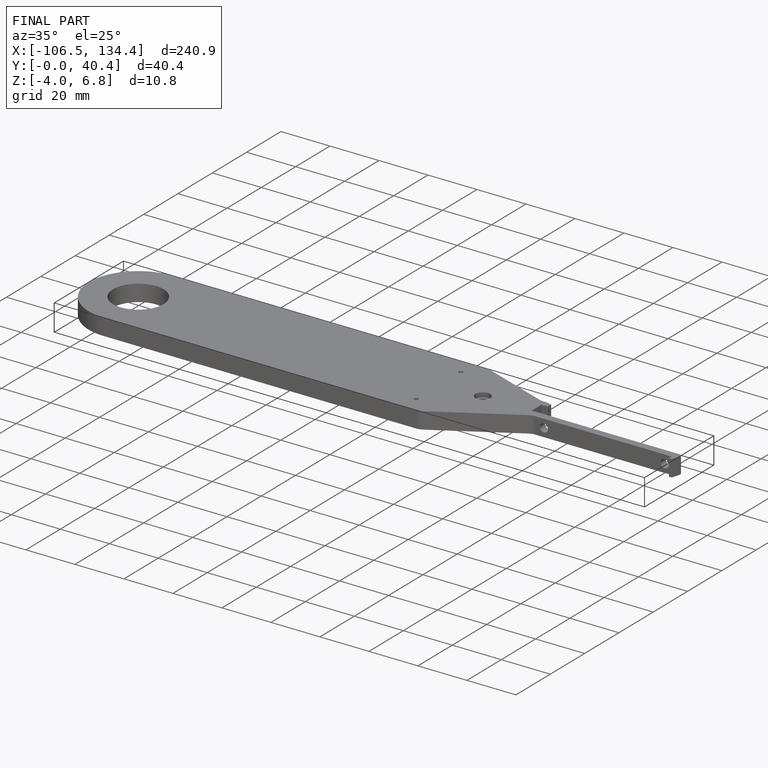
[diagram: finished part — iso view with bounding-box wireframe]
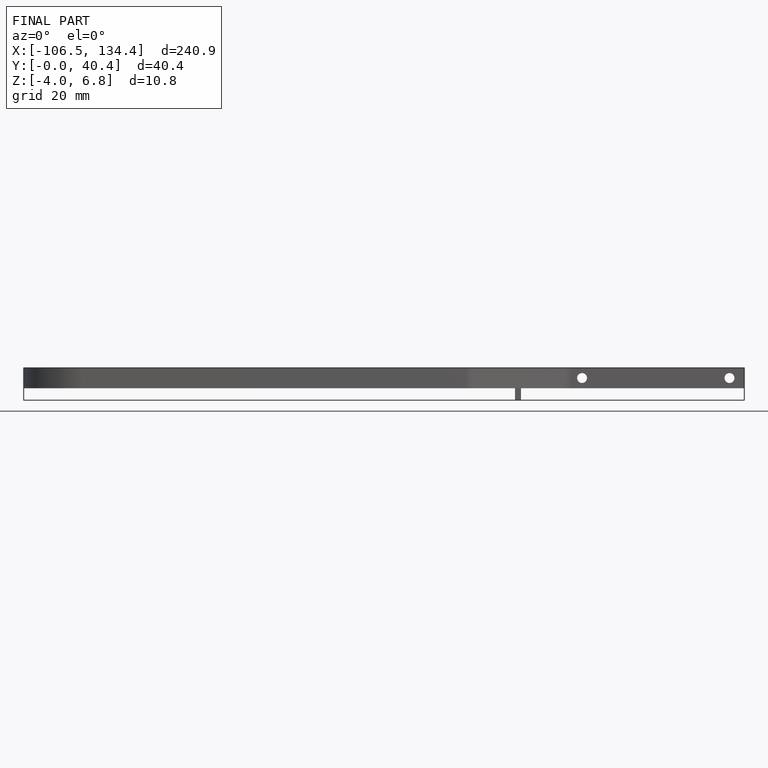
[diagram: finished part — front view with bounding-box wireframe]
